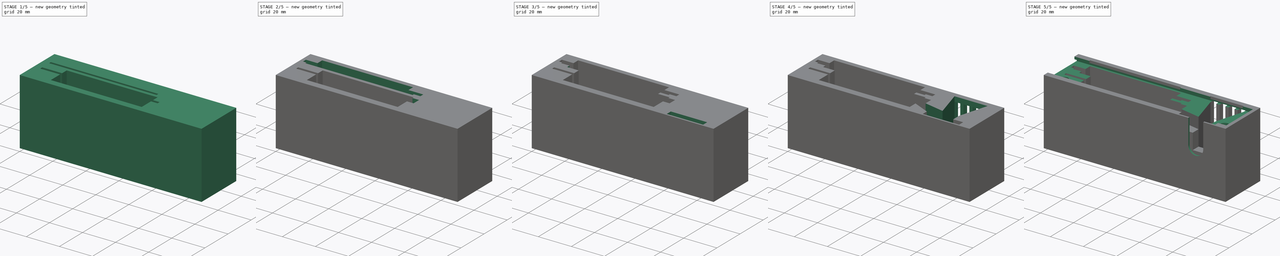
[diagram: build sequence overview — one tinted view per stage of 5, left to right]
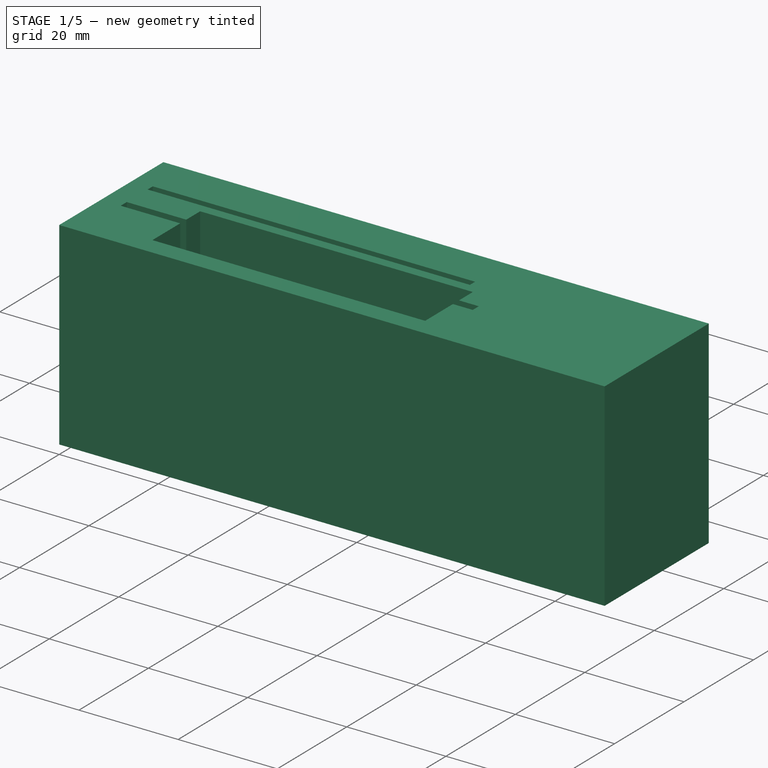
[diagram: stage 1 of 5 — iso view after this stage's code; geometry added in this stage tinted green]
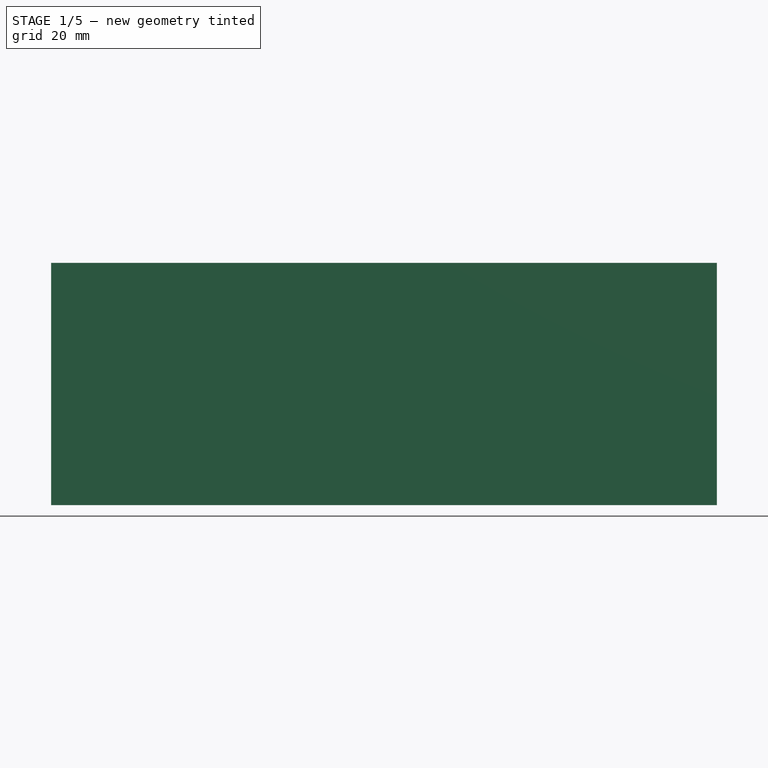
[diagram: stage 1 of 5 — front view after this stage's code; geometry added in this stage tinted green]
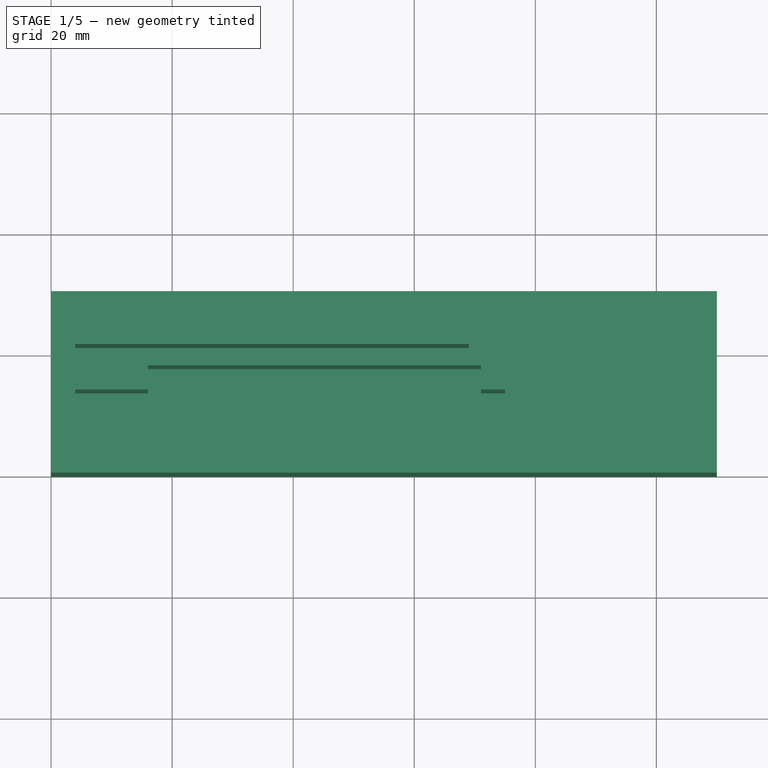
[diagram: stage 1 of 5 — top view after this stage's code; geometry added in this stage tinted green]
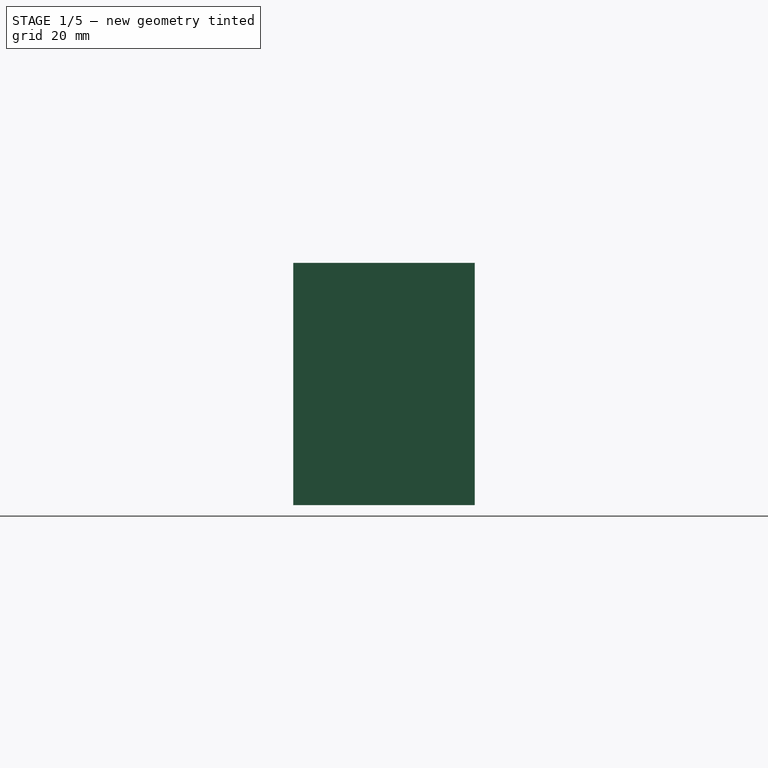
[diagram: stage 1 of 5 — right view after this stage's code; geometry added in this stage tinted green]
FCSTD DOCUMENT  (FreeCAD 0.19R24366 (Git))
Label: case
License: All rights reserved
LicenseURL: http://en.wikipedia.org/wiki/All_rights_reserved
objects: Sketcher::SketchObject×17, PartDesign::Pocket×16, PartDesign::Plane×2, PartDesign::Pad×1, PartDesign::Body×1
note: 54 computed .brp shape members not serialized (recipe doc carries the construction recipe); baked Part::Feature solids carry a one-line shape summary decoded from their .brp

FEATURE [Sketcher::SketchObject] Sketch
  FullyConstrained = true
  MapMode = 5
  Support = -> [XY_Plane]
  sketch-geometry (4):
    g0: LineSegment StartX=0 StartY=0 StartZ=0 EndX=110 EndY=0 EndZ=0
    g1: LineSegment StartX=110 StartY=0 StartZ=0 EndX=110 EndY=30 EndZ=0
    g2: LineSegment StartX=110 StartY=30 StartZ=0 EndX=0 EndY=30 EndZ=0
    g3: LineSegment StartX=0 StartY=30 StartZ=0 EndX=0 EndY=0 EndZ=0
  constraints (11):
    c: Coincident(g0,g1)
    c: Coincident(g1,g2)
    c: Coincident(g2,g3)
    c: Coincident(g3,g0)
    c: Horizontal(g0)
    c: Horizontal(g2)
    c: Vertical(g1)
    c: Vertical(g3)
    c: Coincident(g0,g-1)
    c: DistanceX(g0,g0) = 110
    c: DistanceY(g1,g1) = 30
FEATURE [PartDesign::Pad] Pad  label="BaseBody"
  Direction = (1,1,1)
  Length = 40
  Length2 = 100
  Profile = -> Sketch
  Type = 0
FEATURE [Sketcher::SketchObject] Sketch001
  FullyConstrained = true
  MapMode = 5
  Placement = pos=(0,0,40) rot=(0,0,1;0rad)
  Support = -> [Pad]
  sketch-geometry (8):
    g0: LineSegment StartX=4 StartY=12 StartZ=0 EndX=75 EndY=12 EndZ=0
    g1: LineSegment StartX=75 StartY=12 StartZ=0 EndX=75 EndY=13.75 EndZ=0
    g2: LineSegment StartX=75 StartY=13.75 StartZ=0 EndX=4 EndY=13.75 EndZ=0
    g3: LineSegment StartX=4 StartY=13.75 StartZ=0 EndX=4 EndY=12 EndZ=0
    g4: LineSegment StartX=4 StartY=19.75 StartZ=0 EndX=69 EndY=19.75 EndZ=0
    g5: LineSegment StartX=69 StartY=19.75 StartZ=0 EndX=69 EndY=21.25 EndZ=0
    g6: LineSegment StartX=69 StartY=21.25 StartZ=0 EndX=4 EndY=21.25 EndZ=0
    g7: LineSegment StartX=4 StartY=21.25 StartZ=0 EndX=4 EndY=19.75 EndZ=0
  constraints (23):
    c: Coincident(g0,g1)
    c: Coincident(g1,g2)
    c: Coincident(g2,g3)
    c: Coincident(g3,g0)
    c: Horizontal(g0)
    c: Horizontal(g2)
    c: Vertical(g1)
    c: Vertical(g3)
    c: Coincident(g4,g5)
    c: Coincident(g5,g6)
    c: Coincident(g6,g7)
    c: Coincident(g7,g4)
    c: Horizontal(g4)
    c: Horizontal(g6)
    c: Vertical(g5)
    c: DistanceX(g0,g0) = 71
    c: DistanceY(g1,g1) = 1.75
    c: DistanceX(g6,g6) = 65
    c: DistanceY(g5,g5) = 1.5
    c: Tangent(g3,g7)
    c: DistanceX(g-1,g0) = 4
    c: DistanceY(g-1,g0) = 12
    c: DistanceY(g2,g4) = 6
FEATURE [PartDesign::Plane] DatumPlane  label="IntBase"
  AttachmentOffset = pos=(0,0,-3) rot=(0,0,1;0rad)
  Length = 152.234
  MapMode = 5
  Placement = pos=(0,0,3) rot=(1,0,0;3.14159rad)
  ResizeMode = 0
  Support = -> [Pad]
  Width = 72.2337
FEATURE [PartDesign::Pocket] Pocket  label="PcbMinDim"
  BaseFeature = -> Pad
  Length = 0
  Length2 = 100
  Profile = -> Sketch001
  Type = 3
  UpToFace = -> DatumPlane [Plane]
FEATURE [Sketcher::SketchObject] Sketch002
  ExternalGeometry = -> [Pocket]
  FullyConstrained = true
  MapMode = 5
  Placement = pos=(0,0,40) rot=(0,0,1;0rad)
  Support = -> [Pocket]
  sketch-geometry (4):
    g0: LineSegment StartX=71 StartY=17.75 StartZ=0 EndX=16 EndY=17.75 EndZ=0
    g1: LineSegment StartX=16 StartY=17.75 StartZ=0 EndX=16 EndY=4 EndZ=0
    g2: LineSegment StartX=16 StartY=4 StartZ=0 EndX=71 EndY=4 EndZ=0
    g3: LineSegment StartX=71 StartY=4 StartZ=0 EndX=71 EndY=17.75 EndZ=0
  constraints (12):
    c: Coincident(g0,g1)
    c: Coincident(g1,g2)
    c: Coincident(g2,g3)
    c: Coincident(g3,g0)
    c: Horizontal(g0)
    c: Horizontal(g2)
    c: Vertical(g1)
    c: Vertical(g3)
    c: DistanceX(g2,g2) = 55
    c: DistanceY(g2,g-3) = 8
    c: DistanceY(g-4,g0) = 4
    c: DistanceX(g0,g-4) = 4
FEATURE [PartDesign::Pocket] Pocket001  label="DiscComp"
  BaseFeature = -> Pocket
  Length = 0
  Length2 = 100
  Profile = -> Sketch002
  Type = 3
  UpToFace = -> DatumPlane [Plane]
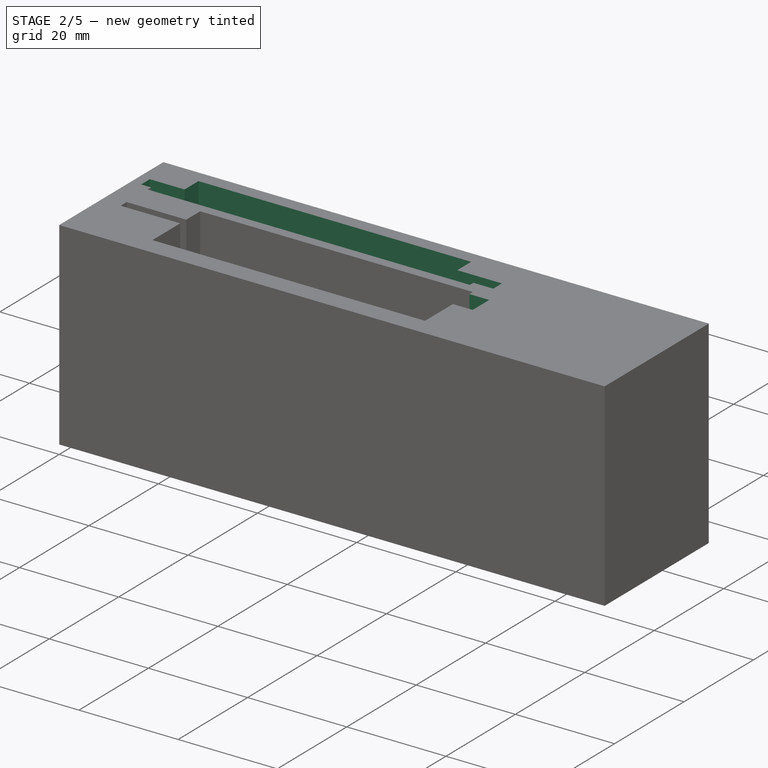
[diagram: stage 2 of 5 — iso view after this stage's code; geometry added in this stage tinted green]
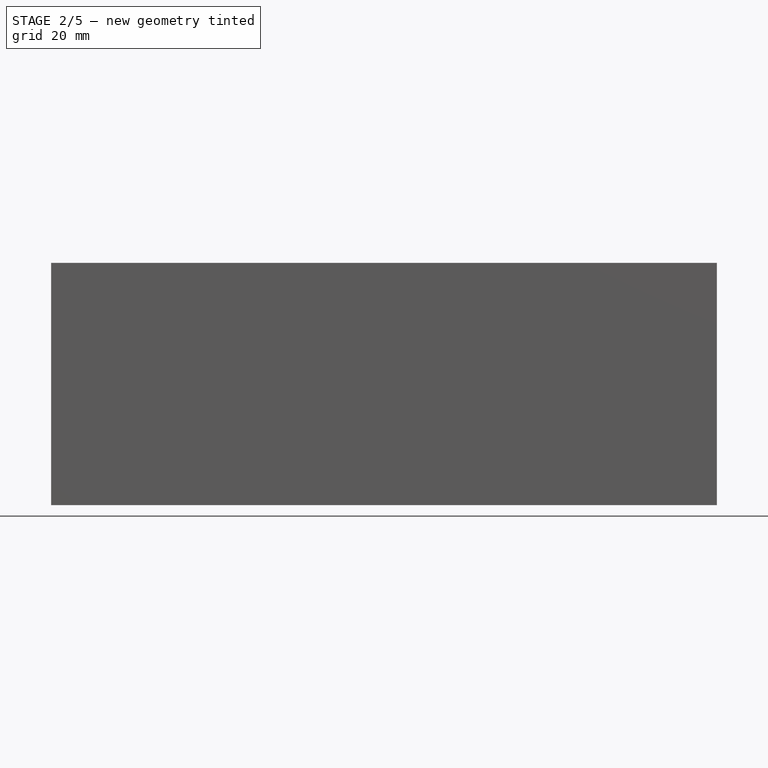
[diagram: stage 2 of 5 — front view after this stage's code; geometry added in this stage tinted green]
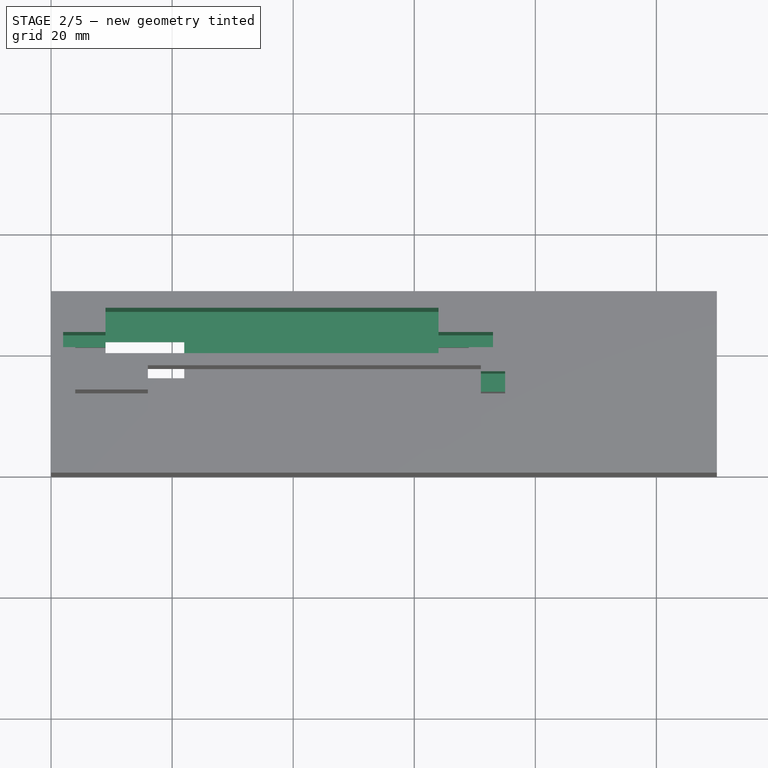
[diagram: stage 2 of 5 — top view after this stage's code; geometry added in this stage tinted green]
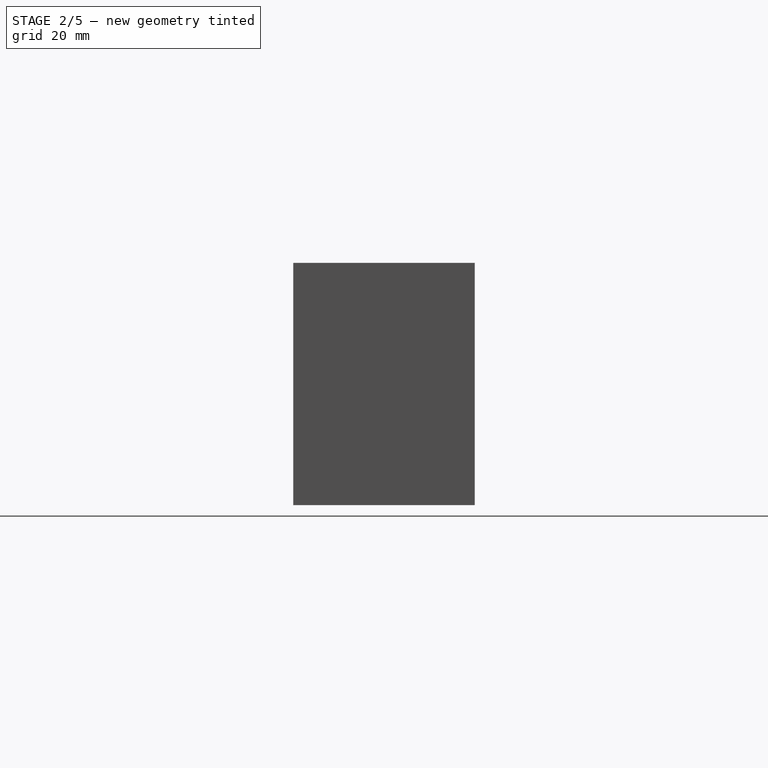
[diagram: stage 2 of 5 — right view after this stage's code; geometry added in this stage tinted green]
FEATURE [Sketcher::SketchObject] Sketch003
  ExternalGeometry = -> [Pocket001]
  FullyConstrained = true
  MapMode = 5
  Placement = pos=(0,0,40) rot=(0,0,1;0rad)
  Support = -> [Pocket001]
  sketch-geometry (4):
    g0: LineSegment StartX=70 StartY=13.75 StartZ=0 EndX=75 EndY=13.75 EndZ=0
    g1: LineSegment StartX=75 StartY=13.75 StartZ=0 EndX=75 EndY=16.75 EndZ=0
    g2: LineSegment StartX=75 StartY=16.75 StartZ=0 EndX=70 EndY=16.75 EndZ=0
    g3: LineSegment StartX=70 StartY=16.75 StartZ=0 EndX=70 EndY=13.75 EndZ=0
  constraints (11):
    c: Coincident(g0,g1)
    c: Coincident(g1,g2)
    c: Coincident(g2,g3)
    c: Coincident(g3,g0)
    c: Horizontal(g0)
    c: Horizontal(g2)
    c: Vertical(g1)
    c: Vertical(g3)
    c: Coincident(g-3,g0)
    c: DistanceY(g1,g1) = 3
    c: DistanceX(g2,g2) = 5
FEATURE [PartDesign::Pocket] Pocket002  label="Connections"
  BaseFeature = -> Pocket001
  Length = 22
  Length2 = 100
  Profile = -> Sketch003
  Type = 0
FEATURE [Sketcher::SketchObject] Sketch004
  ExternalGeometry = -> [Pocket002]
  FullyConstrained = true
  MapMode = 5
  Placement = pos=(0,0,40) rot=(0,0,1;0rad)
  Support = -> [Pocket002]
  sketch-geometry (4):
    g0: LineSegment StartX=9 StartY=20.25 StartZ=0 EndX=64 EndY=20.25 EndZ=0
    g1: LineSegment StartX=64 StartY=20.25 StartZ=0 EndX=64 EndY=27.25 EndZ=0
    g2: LineSegment StartX=64 StartY=27.25 StartZ=0 EndX=9 EndY=27.25 EndZ=0
    g3: LineSegment StartX=9 StartY=27.25 StartZ=0 EndX=9 EndY=20.25 EndZ=0
  constraints (12):
    c: Coincident(g0,g1)
    c: Coincident(g1,g2)
    c: Coincident(g2,g3)
    c: Coincident(g3,g0)
    c: Horizontal(g0)
    c: Horizontal(g2)
    c: Vertical(g1)
    c: Vertical(g3)
    c: DistanceY(g-3,g2) = 6
    c: DistanceX(g0,g-4) = 5
    c: DistanceX(g-3,g0) = 5
    c: DistanceY(g0,g-3) = 1
FEATURE [PartDesign::Pocket] Pocket003  label="RspConnectors"
  BaseFeature = -> Pocket002
  Length = 38.5
  Length2 = 100
  Profile = -> Sketch004
  Type = 0
FEATURE [Sketcher::SketchObject] Sketch005
  ExternalGeometry = -> [Pocket003]
  FullyConstrained = true
  MapMode = 5
  Placement = pos=(0,0,40) rot=(0,0,1;0rad)
  Support = -> [Pocket003]
  sketch-geometry (4):
    g0: LineSegment StartX=2 StartY=23.25 StartZ=0 EndX=73 EndY=23.25 EndZ=0
    g1: LineSegment StartX=73 StartY=23.25 StartZ=0 EndX=73 EndY=20.75 EndZ=0
    g2: LineSegment StartX=73 StartY=20.75 StartZ=0 EndX=2 EndY=20.75 EndZ=0
    g3: LineSegment StartX=2 StartY=20.75 StartZ=0 EndX=2 EndY=23.25 EndZ=0
  constraints (12):
    c: Coincident(g0,g1)
    c: Coincident(g1,g2)
    c: Coincident(g2,g3)
    c: Coincident(g3,g0)
    c: Horizontal(g0)
    c: Horizontal(g2)
    c: Vertical(g1)
    c: Vertical(g3)
    c: DistanceY(g-3,g0) = 2
    c: DistanceX(g2,g-3) = 2
    c: DistanceX(g-4,g1) = 4
    c: DistanceY(g2,g-3) = 0.5
FEATURE [PartDesign::Pocket] Pocket004  label="RspSi"
  BaseFeature = -> Pocket003
  Length = 32
  Length2 = 100
  Profile = -> Sketch005
  Type = 0
FEATURE [Sketcher::SketchObject] Sketch006
  ExternalGeometry = -> [Pocket004]
  FullyConstrained = true
  MapMode = 5
  Support = -> [XY_Plane]
  sketch-geometry (4):
    g0: LineSegment StartX=9 StartY=22.25 StartZ=0 EndX=22 EndY=22.25 EndZ=0
    g1: LineSegment StartX=22 StartY=22.25 StartZ=0 EndX=22 EndY=16.25 EndZ=0
    g2: LineSegment StartX=22 StartY=16.25 StartZ=0 EndX=9 EndY=16.25 EndZ=0
    g3: LineSegment StartX=9 StartY=16.25 StartZ=0 EndX=9 EndY=22.25 EndZ=0
  constraints (12):
    c: Coincident(g0,g1)
    c: Coincident(g1,g2)
    c: Coincident(g2,g3)
    c: Coincident(g3,g0)
    c: Horizontal(g0)
    c: Horizontal(g2)
    c: Vertical(g1)
    c: Vertical(g3)
    c: DistanceX(g-3,g0) = 5
    c: DistanceX(g-3,g0) = 18
    c: DistanceY(g2,g-3) = 5
    c: DistanceY(g-3,g0) = 1
FEATURE [PartDesign::Pocket] Pocket005  label="Pwr"
  BaseFeature = -> Pocket004
  Length = 5
  Length2 = 100
  Profile = -> Sketch006
  Reversed = true
  Type = 0
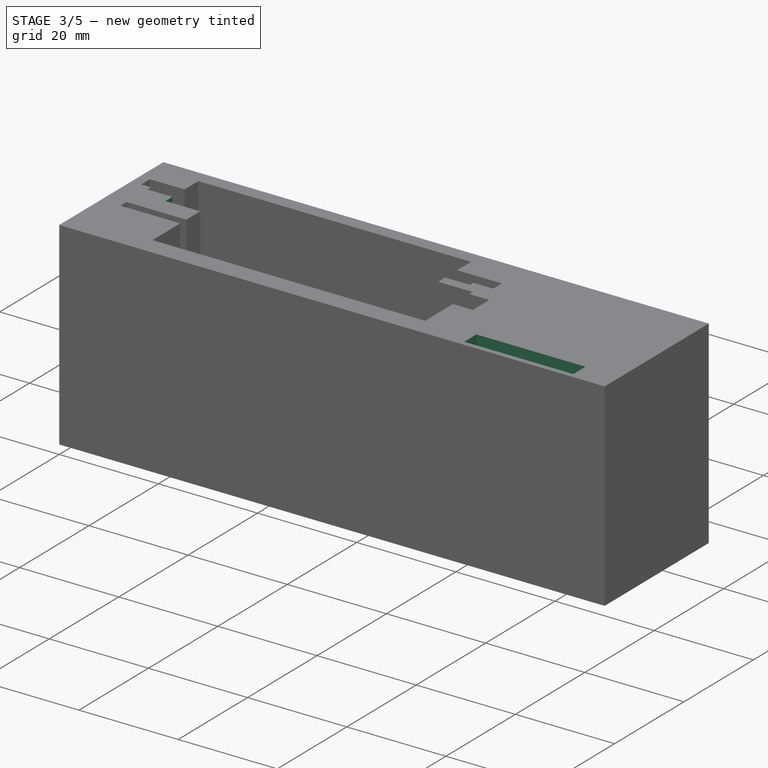
[diagram: stage 3 of 5 — iso view after this stage's code; geometry added in this stage tinted green]
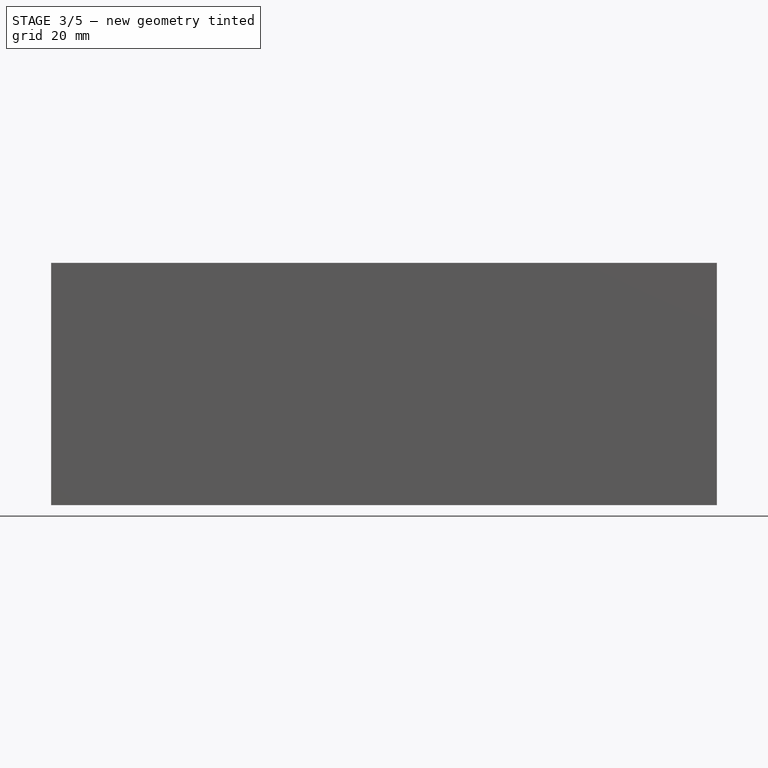
[diagram: stage 3 of 5 — front view after this stage's code; geometry added in this stage tinted green]
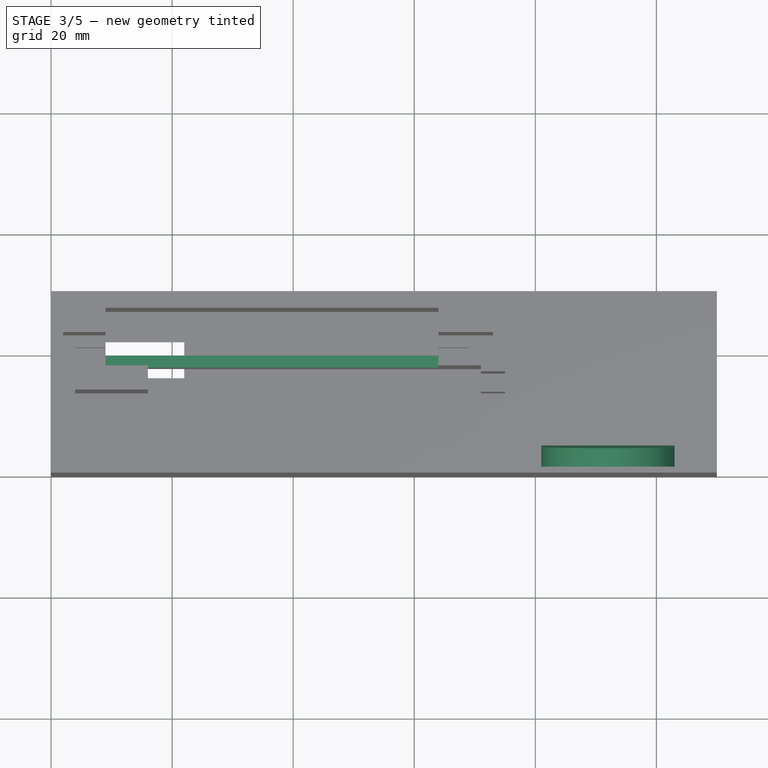
[diagram: stage 3 of 5 — top view after this stage's code; geometry added in this stage tinted green]
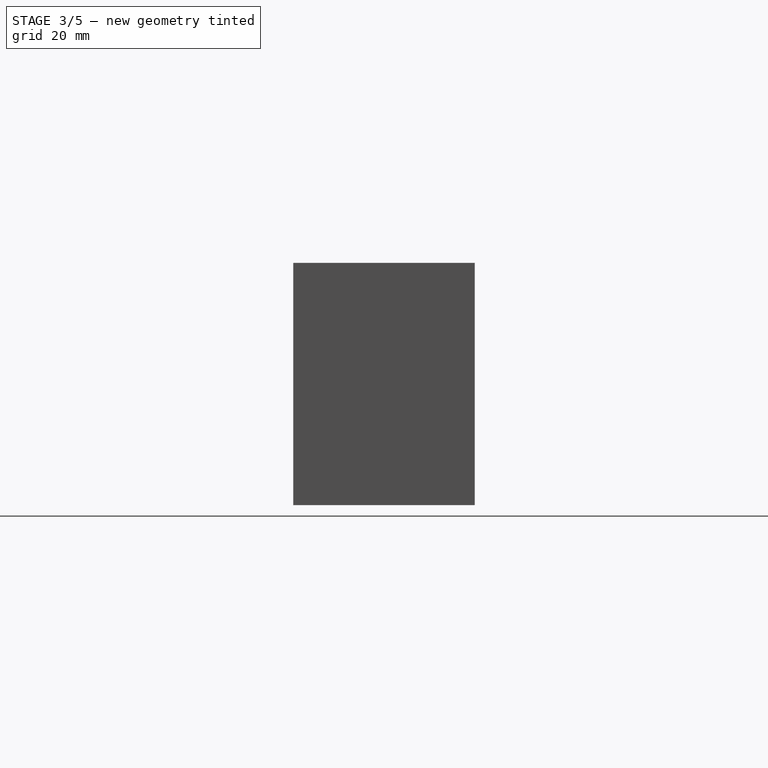
[diagram: stage 3 of 5 — right view after this stage's code; geometry added in this stage tinted green]
FEATURE [Sketcher::SketchObject] Sketch007
  ExternalGeometry = -> [Pocket005]
  FullyConstrained = true
  MapMode = 5
  Placement = pos=(0,0,40) rot=(0,0,1;0rad)
  Support = -> [Pocket005]
  sketch-geometry (4):
    g0: LineSegment StartX=9 StartY=19.75 StartZ=0 EndX=64 EndY=19.75 EndZ=0
    g1: LineSegment StartX=64 StartY=19.75 StartZ=0 EndX=64 EndY=17.75 EndZ=0
    g2: LineSegment StartX=64 StartY=17.75 StartZ=0 EndX=9 EndY=17.75 EndZ=0
    g3: LineSegment StartX=9 StartY=17.75 StartZ=0 EndX=9 EndY=19.75 EndZ=0
  constraints (12):
    c: Coincident(g0,g1)
    c: Coincident(g1,g2)
    c: Coincident(g2,g3)
    c: Coincident(g3,g0)
    c: Horizontal(g0)
    c: Horizontal(g2)
    c: Vertical(g1)
    c: Vertical(g3)
    c: PointOnObject(g-5,g2)
    c: PointOnObject(g-4,g0)
    c: DistanceX(g-3,g0) = 5
    c: DistanceX(g0,g-4) = 5
FEATURE [PartDesign::Pocket] Pocket006  label="Inter"
  BaseFeature = -> Pocket005
  Length = 22
  Length2 = 100
  Profile = -> Sketch007
  Type = 0
FEATURE [PartDesign::Plane] DatumPlane001  label="BaseLamp"
  AttachmentOffset = pos=(0,0,-1) rot=(0,0,1;0rad)
  Length = 153.735
  MapMode = 5
  Placement = pos=(0,1,-2e-16) rot=(1,0,0;1.5708rad)
  ResizeMode = 0
  Support = -> [Pocket006]
  Width = 83.735
FEATURE [Sketcher::SketchObject] Sketch009
  ExternalGeometry = -> [Pocket006]
  FullyConstrained = true
  MapMode = 5
  Placement = pos=(0,1,-2e-16) rot=(1,0,0;1.5708rad)
  Support = -> [DatumPlane001]
  sketch-geometry (1):
    g0: Circle CenterX=92 CenterY=25 CenterZ=0 NormalX=0 NormalY=0 NormalZ=1 AngleXU=0 Radius=11
  constraints (3):
    c: Diameter(g0) = 22
    c: DistanceX(g0,g-3) = 18
    c: DistanceY(g0,g-3) = 15
FEATURE [PartDesign::Pocket] Pocket007  label="LampPlate"
  BaseFeature = -> Pocket006
  Length = 3.5
  Length2 = 100
  Profile = -> Sketch009
  Type = 0
FEATURE [Sketcher::SketchObject] Sketch010
  ExternalGeometry = -> [Pocket007]
  FullyConstrained = true
  MapMode = 5
  Placement = pos=(0,0,40) rot=(0,0,1;0rad)
  Support = -> [Pocket007]
  sketch-geometry (4):
    g0: LineSegment StartX=103 StartY=4.5 StartZ=0 EndX=81 EndY=4.5 EndZ=0
    g1: LineSegment StartX=81 StartY=4.5 StartZ=0 EndX=81 EndY=1 EndZ=0
    g2: LineSegment StartX=81 StartY=1 StartZ=0 EndX=103 EndY=1 EndZ=0
    g3: LineSegment StartX=103 StartY=1 StartZ=0 EndX=103 EndY=4.5 EndZ=0
  constraints (10):
    c: Coincident(g0,g1)
    c: Coincident(g1,g2)
    c: Coincident(g2,g3)
    c: Coincident(g3,g0)
    c: Horizontal(g0)
    c: Horizontal(g2)
    c: Vertical(g1)
    c: Coincident(g0,g-3)
    c: DistanceX(g0,g0) = 22
    c: Coincident(g2,g-4)
FEATURE [PartDesign::Pocket] Pocket008  label="LampPlateInsert"
  BaseFeature = -> Pocket007
  Length = 15
  Length2 = 100
  Profile = -> Sketch010
  Type = 0
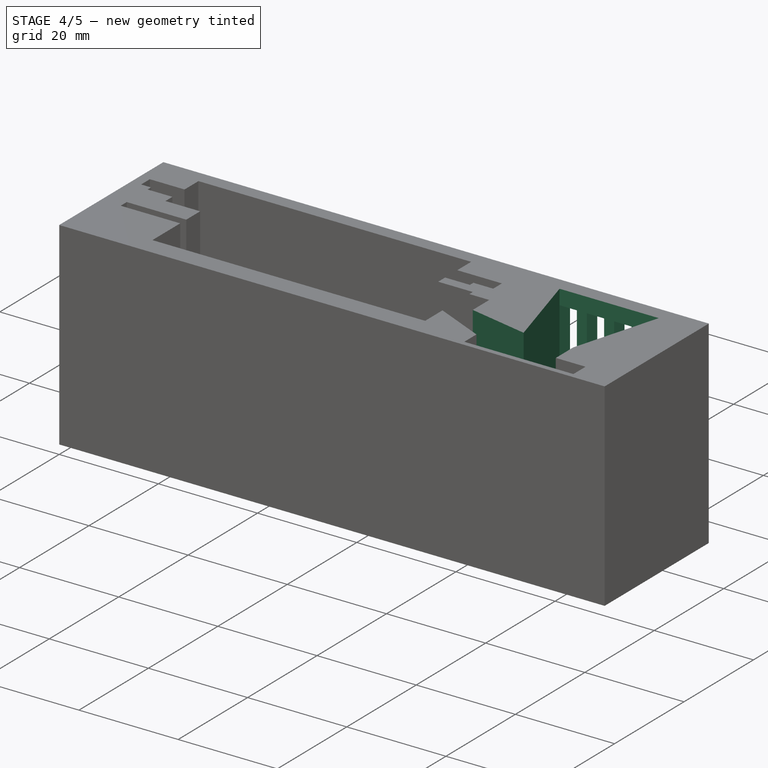
[diagram: stage 4 of 5 — iso view after this stage's code; geometry added in this stage tinted green]
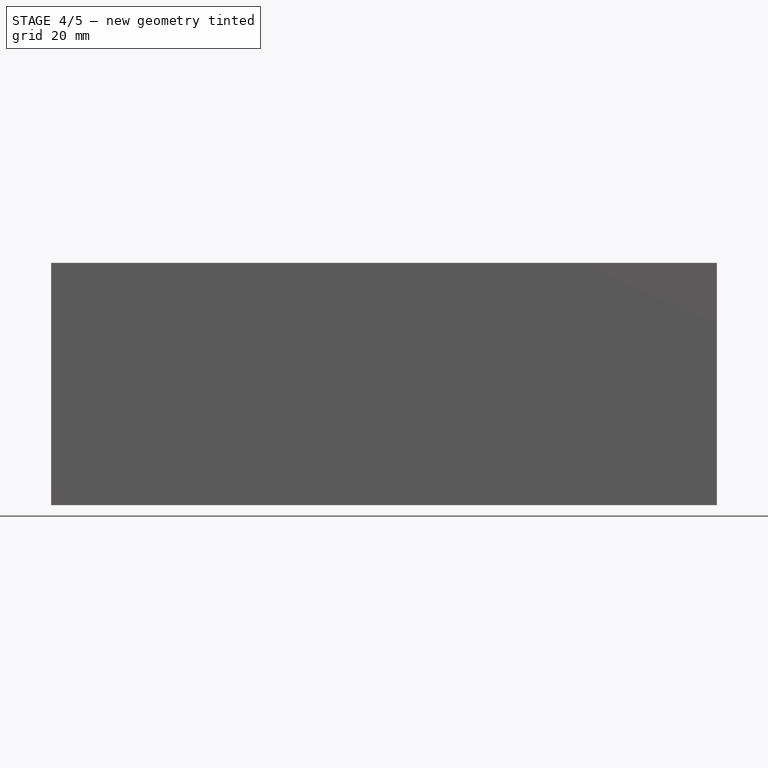
[diagram: stage 4 of 5 — front view after this stage's code; geometry added in this stage tinted green]
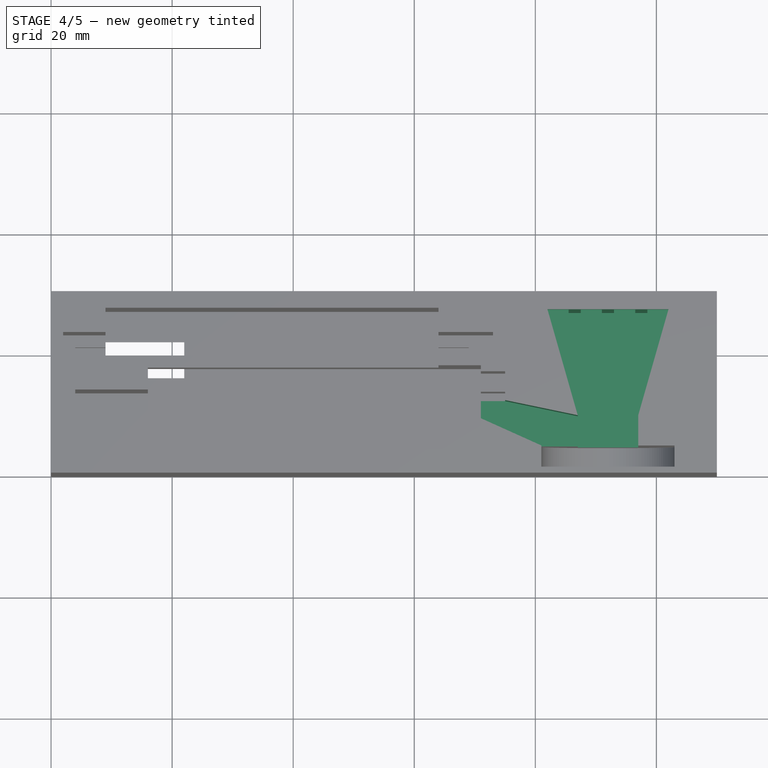
[diagram: stage 4 of 5 — top view after this stage's code; geometry added in this stage tinted green]
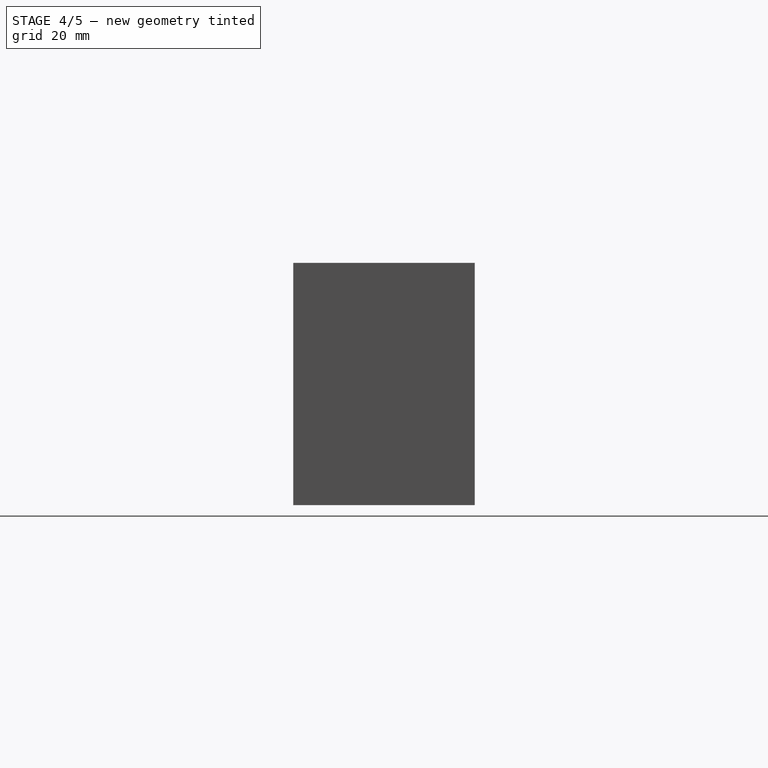
[diagram: stage 4 of 5 — right view after this stage's code; geometry added in this stage tinted green]
FEATURE [Sketcher::SketchObject] Sketch011
  ExternalGeometry = -> [Pocket008]
  FullyConstrained = true
  MapMode = 5
  Placement = pos=(0,0,40) rot=(0,0,1;0rad)
  Support = -> [Pocket008]
  sketch-geometry (5):
    g0: GeomPoint X=92 Y=4.5 Z=0
    g1: LineSegment StartX=87 StartY=4.5 StartZ=0 EndX=97 EndY=4.5 EndZ=0
    g2: LineSegment StartX=97 StartY=4.5 StartZ=0 EndX=97 EndY=9.5 EndZ=0
    g3: LineSegment StartX=97 StartY=9.5 StartZ=0 EndX=87 EndY=9.5 EndZ=0
    g4: LineSegment StartX=87 StartY=9.5 StartZ=0 EndX=87 EndY=4.5 EndZ=0
  constraints (13):
    c: Symmetric(g-4,g-3,g0)
    c: Coincident(g1,g2)
    c: Coincident(g2,g3)
    c: Coincident(g3,g4)
    c: Coincident(g4,g1)
    c: Horizontal(g1)
    c: Horizontal(g3)
    c: Vertical(g2)
    c: Vertical(g4)
    c: DistanceX(g1,g0) = 5
    c: DistanceX(g0,g1) = 5
    c: PointOnObject(g0,g1)
    c: DistanceY(g2,g2) = 5
FEATURE [PartDesign::Pocket] Pocket009  label="CoolerFixation"
  BaseFeature = -> Pocket008
  Length = 19.5
  Length2 = 100
  Profile = -> Sketch011
  Type = 0
FEATURE [Sketcher::SketchObject] Sketch012
  ExternalGeometry = -> [Pocket009]
  FullyConstrained = true
  MapMode = 5
  Placement = pos=(0,0,40) rot=(0,0,1;0rad)
  Support = -> [Pocket009]
  sketch-geometry (6):
    g0: LineSegment StartX=87 StartY=9.5 StartZ=0 EndX=75 EndY=12 EndZ=0
    g1: LineSegment StartX=75 StartY=12 StartZ=0 EndX=71 EndY=12 EndZ=0
    g2: LineSegment StartX=71 StartY=12 StartZ=0 EndX=71 EndY=9 EndZ=0
    g3: LineSegment StartX=71 StartY=9 StartZ=0 EndX=81 EndY=4.5 EndZ=0
    g4: LineSegment StartX=81 StartY=4.5 StartZ=0 EndX=87 EndY=4.5 EndZ=0
    g5: LineSegment StartX=87 StartY=4.5 StartZ=0 EndX=87 EndY=9.5 EndZ=0
  constraints (13):
    c: Coincident(g0,g-7)
    c: Coincident(g0,g-6)
    c: Coincident(g0,g1)
    c: Coincident(g1,g-3)
    c: Coincident(g1,g2)
    c: Vertical(g2)
    c: Coincident(g2,g3)
    c: Coincident(g3,g-5)
    c: Coincident(g3,g4)
    c: Coincident(g4,g-4)
    c: Coincident(g4,g5)
    c: Coincident(g5,g0)
    c: DistanceY(g2,g2) = 3
FEATURE [PartDesign::Pocket] Pocket010  label="Cables"
  BaseFeature = -> Pocket009
  Length = 10
  Length2 = 100
  Profile = -> Sketch012
  Type = 0
FEATURE [Sketcher::SketchObject] Sketch013
  ExternalGeometry = -> [Pocket010]
  FullyConstrained = true
  MapMode = 5
  Placement = pos=(0,0,40) rot=(0,0,1;0rad)
  Support = -> [Pocket010]
  sketch-geometry (4):
    g0: LineSegment StartX=87 StartY=9.5 StartZ=0 EndX=82 EndY=27 EndZ=0
    g1: LineSegment StartX=82 StartY=27 StartZ=0 EndX=102 EndY=27 EndZ=0
    g2: LineSegment StartX=102 StartY=27 StartZ=0 EndX=97 EndY=9.5 EndZ=0
    g3: LineSegment StartX=97 StartY=9.5 StartZ=0 EndX=87 EndY=9.5 EndZ=0
  constraints (10):
    c: Coincident(g0,g-3)
    c: Coincident(g0,g1)
    c: Horizontal(g1)
    c: Coincident(g1,g2)
    c: Coincident(g2,g-4)
    c: Coincident(g2,g3)
    c: Coincident(g3,g0)
    c: DistanceY(g1,g-5) = 3
    c: DistanceX(g0,g0) = 5
    c: DistanceX(g2,g1) = 5
FEATURE [PartDesign::Pocket] Pocket011  label="CoolingSpace"
  BaseFeature = -> Pocket010
  Length = 35
  Length2 = 100
  Profile = -> Sketch013
  Type = 0
FEATURE [Sketcher::SketchObject] Sketch014
  ExternalGeometry = -> [Pocket011]
  FullyConstrained = true
  MapMode = 5
  Placement = pos=(0,27,0) rot=(1,0,0;1.5708rad)
  Support = -> [Pocket011]
  sketch-geometry (16):
    g0: LineSegment StartX=82 StartY=5 StartZ=0 EndX=85.5 EndY=5 EndZ=0
    g1: LineSegment StartX=85.5 StartY=5 StartZ=0 EndX=85.5 EndY=37 EndZ=0
    g2: LineSegment StartX=85.5 StartY=37 StartZ=0 EndX=82 EndY=37 EndZ=0
    g3: LineSegment StartX=82 StartY=37 StartZ=0 EndX=82 EndY=5 EndZ=0
    g4: LineSegment StartX=87.5 StartY=37 StartZ=0 EndX=91 EndY=37 EndZ=0
    g5: LineSegment StartX=91 StartY=37 StartZ=0 EndX=91 EndY=5 EndZ=0
    g6: LineSegment StartX=91 StartY=5 StartZ=0 EndX=87.5 EndY=5 EndZ=0
    g7: LineSegment StartX=87.5 StartY=5 StartZ=0 EndX=87.5 EndY=37 EndZ=0
    g8: LineSegment StartX=93 StartY=37 StartZ=0 EndX=96.5 EndY=37 EndZ=0
    g9: LineSegment StartX=96.5 StartY=37 StartZ=0 EndX=96.5 EndY=5 EndZ=0
    g10: LineSegment StartX=96.5 StartY=5 StartZ=0 EndX=93 EndY=5 EndZ=0
    g11: LineSegment StartX=93 StartY=5 StartZ=0 EndX=93 EndY=37 EndZ=0
    g12: LineSegment StartX=98.5 StartY=37 StartZ=0 EndX=102 EndY=37 EndZ=0
    g13: LineSegment StartX=102 StartY=37 StartZ=0 EndX=102 EndY=5 EndZ=0
    g14: LineSegment StartX=102 StartY=5 StartZ=0 EndX=98.5 EndY=5 EndZ=0
    g15: LineSegment StartX=98.5 StartY=5 StartZ=0 EndX=98.5 EndY=37 EndZ=0
  constraints (46):
    c: Coincident(g0,g1)
    c: Coincident(g1,g2)
    c: Coincident(g2,g3)
    c: Coincident(g3,g0)
    c: Horizontal(g0)
    c: Horizontal(g2)
    c: Vertical(g1)
    c: Vertical(g3)
    c: Coincident(g0,g-3)
    c: Coincident(g4,g5)
    c: Coincident(g5,g6)
    c: Coincident(g6,g7)
    c: Coincident(g7,g4)
    c: Horizontal(g4)
    c: Horizontal(g6)
    c: Vertical(g5)
    c: Vertical(g7)
    c: Coincident(g8,g9)
    c: Coincident(g9,g10)
    c: Coincident(g10,g11)
    c: Coincident(g11,g8)
    c: Horizontal(g8)
    c: Horizontal(g10)
    c: Vertical(g9)
    c: Vertical(g11)
    c: Coincident(g12,g13)
    c: Coincident(g13,g14)
    c: Coincident(g14,g15)
    c: Coincident(g15,g12)
    c: Horizontal(g12)
    c: Horizontal(g14)
    c: Vertical(g13)
    c: Vertical(g15)
    c: Coincident(g13,g-4)
    c: DistanceX(g12,g12) = 3.5
    c: DistanceX(g2,g2) = 3.5
    c: DistanceX(g4,g4) = 3.5
    c: DistanceX(g8,g8) = 3.5
    c: PointOnObject(g1,g4)
    c: PointOnObject(g4,g8)
    c: PointOnObject(g1,g12)
    c: PointOnObject(g0,g6)
    c: PointOnObject(g5,g10)
    c: DistanceX(g9,g14) = 2
    c: DistanceX(g0,g6) = 2
    c: DistanceY(g2,g-3) = 3
FEATURE [PartDesign::Pocket] Pocket012  label="Vents"
  BaseFeature = -> Pocket011
  Length = 0
  Length2 = 100
  Profile = -> Sketch014
  Type = 3
  UpToFace = -> Pocket011 [Face6]
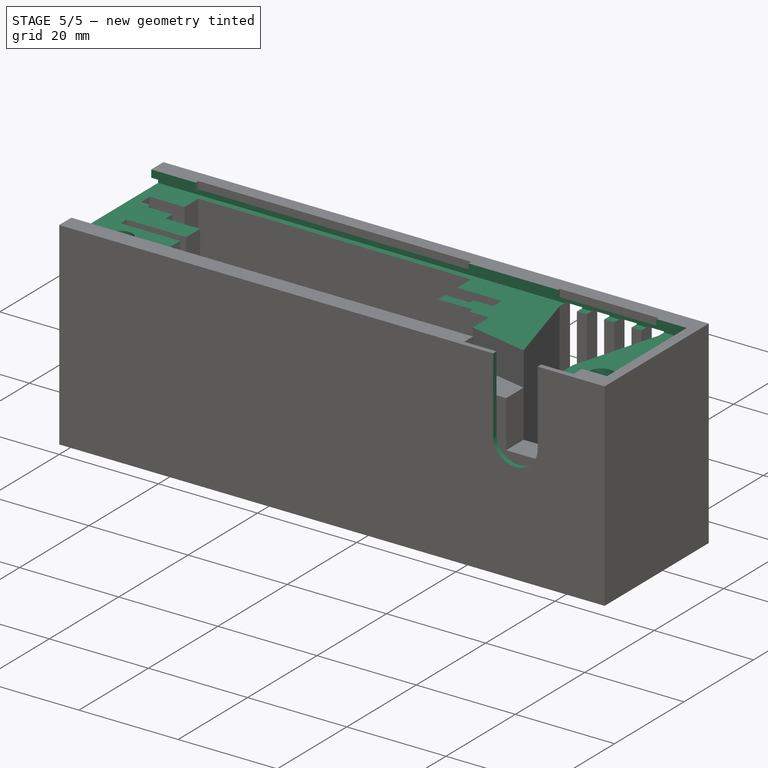
[diagram: stage 5 of 5 — iso view after this stage's code; geometry added in this stage tinted green]
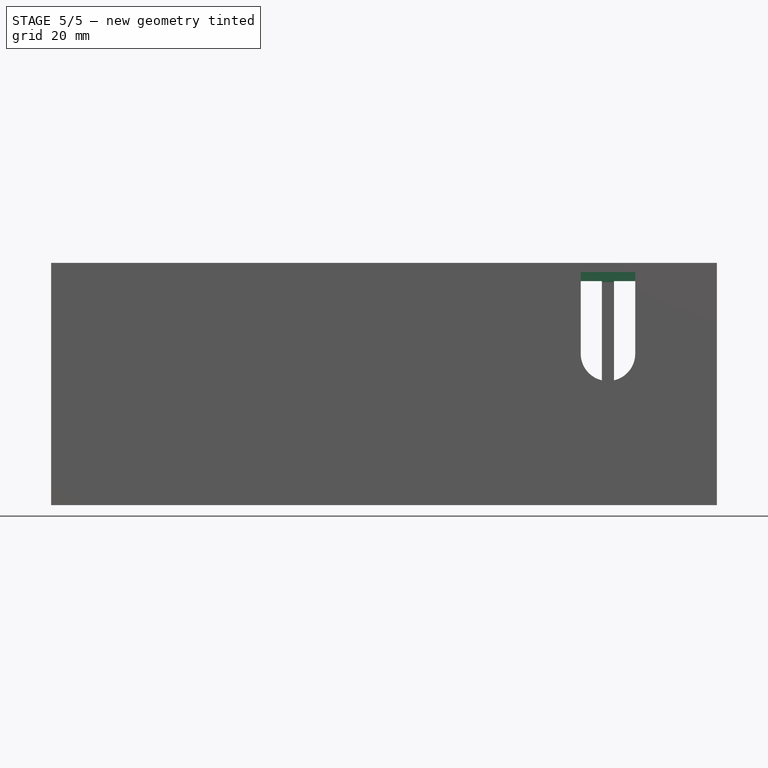
[diagram: stage 5 of 5 — front view after this stage's code; geometry added in this stage tinted green]
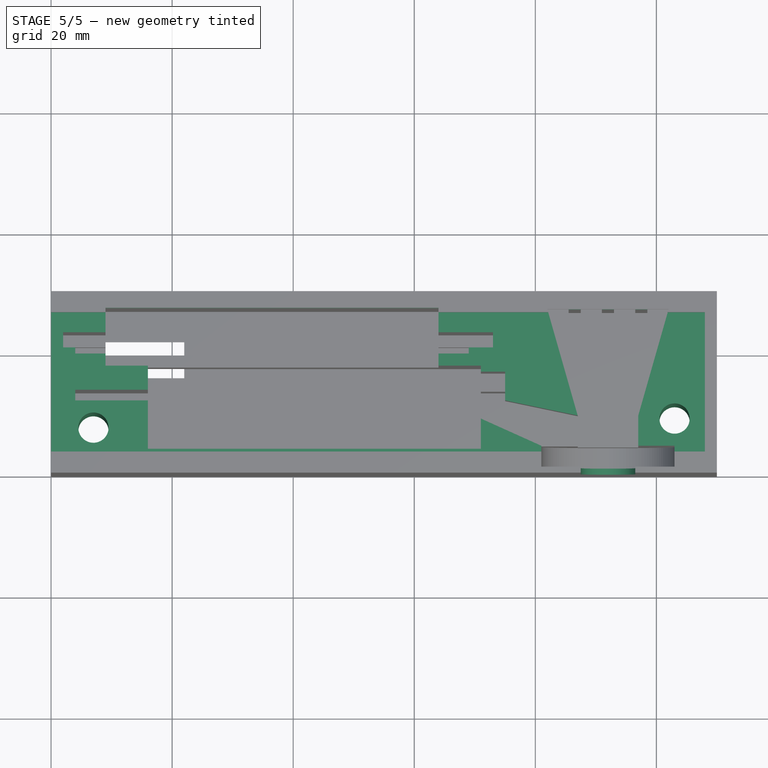
[diagram: stage 5 of 5 — top view after this stage's code; geometry added in this stage tinted green]
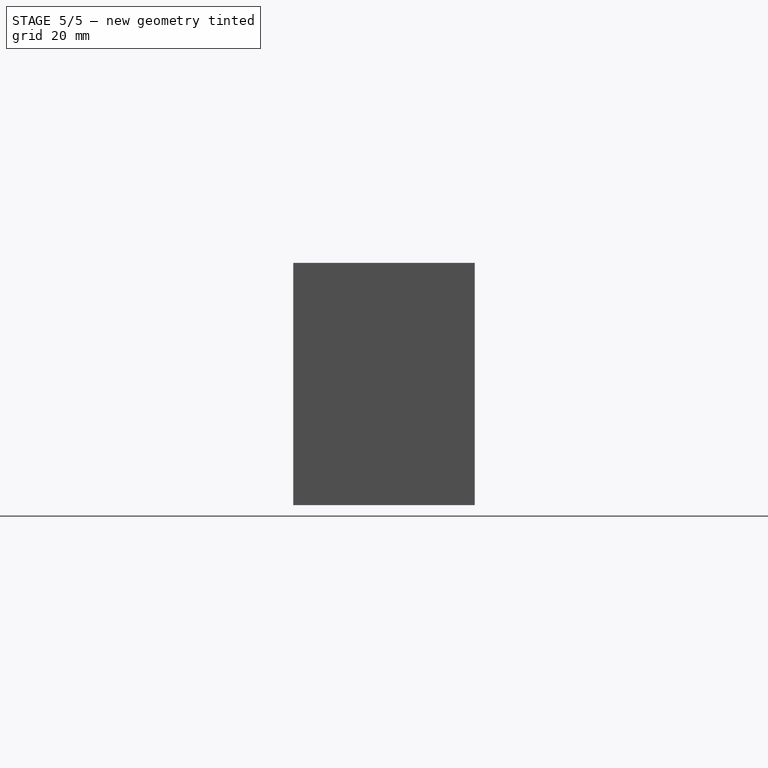
[diagram: stage 5 of 5 — right view after this stage's code; geometry added in this stage tinted green]
FEATURE [Sketcher::SketchObject] Sketch015
  ExternalGeometry = -> [Pocket012]
  FullyConstrained = true
  MapMode = 5
  Placement = pos=(0,0,0) rot=(1,0,0;1.5708rad)
  Support = -> [Pocket012]
  sketch-geometry (4):
    g0: ArcOfCircle CenterX=92 CenterY=25 CenterZ=0 NormalX=0 NormalY=0 NormalZ=1 AngleXU=0 Radius=4.5 StartAngle=3.14159 EndAngle=6.28319
    g1: LineSegment StartX=87.5 StartY=25 StartZ=0 EndX=87.5 EndY=40 EndZ=0
    g2: LineSegment StartX=87.5 StartY=40 StartZ=0 EndX=96.5 EndY=40 EndZ=0
    g3: LineSegment StartX=96.5 StartY=40 StartZ=0 EndX=96.5 EndY=25 EndZ=0
  constraints (12):
    c: Diameter(g0) = 9
    c: PointOnObject(g0,g-3)
    c: PointOnObject(g0,g-3)
    c: PointOnObject(g0,g-3)
    c: Tangent(g0,g1) = 1.5708
    c: Coincident(g1,g2)
    c: PointOnObject(g2,g-4)
    c: Horizontal(g2)
    c: Coincident(g2,g3)
    c: Coincident(g3,g0)
    c: Vertical(g3)
    c: DistanceX(g0,g-4) = 18
FEATURE [PartDesign::Pocket] Pocket013  label="Lamp"
  BaseFeature = -> Pocket012
  Length = 0
  Length2 = 100
  Profile = -> Sketch015
  Type = 3
  UpToFace = -> Pocket012 [Face46]
FEATURE [Sketcher::SketchObject] Sketch016
  ExternalGeometry = -> [Pocket013]
  FullyConstrained = true
  MapMode = 5
  Placement = pos=(0,0,0) rot=(0.57735,-0.57735,-0.57735;2.0944rad)
  Support = -> [Pocket013]
  sketch-geometry (8):
    g0: LineSegment StartX=-1.5 StartY=38.5 StartZ=0 EndX=-1.5 EndY=36.8 EndZ=0
    g1: LineSegment StartX=-1.5 StartY=36.8 StartZ=0 EndX=-28.5 EndY=36.8 EndZ=0
    g2: LineSegment StartX=-28.5 StartY=36.8 StartZ=0 EndX=-28.5 EndY=38.5 EndZ=0
    g3: LineSegment StartX=-28.5 StartY=38.5 StartZ=0 EndX=-26.5 EndY=38.5 EndZ=0
    g4: LineSegment StartX=-26.5 StartY=38.5 StartZ=0 EndX=-26.5 EndY=40.5 EndZ=0
    g5: LineSegment StartX=-26.5 StartY=40.5 StartZ=0 EndX=-3.5 EndY=40.5 EndZ=0
    g6: LineSegment StartX=-3.5 StartY=40.5 StartZ=0 EndX=-3.5 EndY=38.5 EndZ=0
    g7: LineSegment StartX=-3.5 StartY=38.5 StartZ=0 EndX=-1.5 EndY=38.5 EndZ=0
  constraints (24):
    c: Coincident(g0,g1)
    c: Coincident(g1,g2)
    c: Horizontal(g1)
    c: Vertical(g0)
    c: Vertical(g2)
    c: DistanceX(g0,g-4) = 1.5
    c: DistanceX(g-3,g2) = 1.5
    c: DistanceY(g2,g-3) = 1.5
    c: DistanceY(g0,g0) = 1.7
    c: Coincident(g2,g3)
    c: Horizontal(g3)
    c: Coincident(g3,g4)
    c: Vertical(g4)
    c: Coincident(g4,g5)
    c: Horizontal(g5)
    c: Coincident(g5,g6)
    c: Vertical(g6)
    c: Coincident(g6,g7)
    c: Coincident(g7,g0)
    c: Horizontal(g7)
    c: DistanceY(g0,g-4) = 1.5
    c: DistanceY(g6,g6) = 2
    c: DistanceX(g7,g7) = 2
    c: DistanceX(g3,g3) = 2
FEATURE [PartDesign::Pocket] Pocket014
  BaseFeature = -> Pocket013
  Length = 108
  Length2 = 100
  Profile = -> Sketch016
  Type = 0
FEATURE [Sketcher::SketchObject] Sketch017
  ExternalGeometry = -> [Pocket014]
  FullyConstrained = true
  MapMode = 5
  Placement = pos=(0,0,0) rot=(1,0,0;3.14159rad)
  Support = -> [Pocket014]
  sketch-geometry (2):
    g0: Circle CenterX=7 CenterY=-7.5 CenterZ=0 NormalX=0 NormalY=0 NormalZ=1 AngleXU=0 Radius=2.5
    g1: Circle CenterX=103 CenterY=-9 CenterZ=0 NormalX=0 NormalY=0 NormalZ=1 AngleXU=0 Radius=2.5
  constraints (6):
    c: Diameter(g1) = 5
    c: Diameter(g0) = 5
    c: DistanceY(g1,g-3) = 9
    c: DistanceY(g0,g-1) = 7.5
    c: DistanceX(g1,g-3) = 7
    c: DistanceX(g-1,g0) = 7
FEATURE [PartDesign::Pocket] Pocket015
  BaseFeature = -> Pocket014
  Length = 5
  Length2 = 100
  Profile = -> Sketch017
  Type = 1
FEATURE [PartDesign::Body] Body
  Group = -> [Sketch,Pad,Sketch001,DatumPlane,Pocket,Sketch002,Pocket001,Sketch003,Pocket002,Sketch004,Pocket003,Sketch005,Pocket004,Sketch006,Pocket005,Sketch007,Pocket006,DatumPlane001,Sketch009,Pocket007,Sketch010,Pocket008,Sketch011,Pocket009,Sketch012,Pocket010,Sketch013,Pocket011,Sketch014,Pocket012,Sketch015,Pocket013,Sketch016,Pocket014,Sketch017,Pocket015]
  Origin = -> Origin
  Tip = -> Pocket015
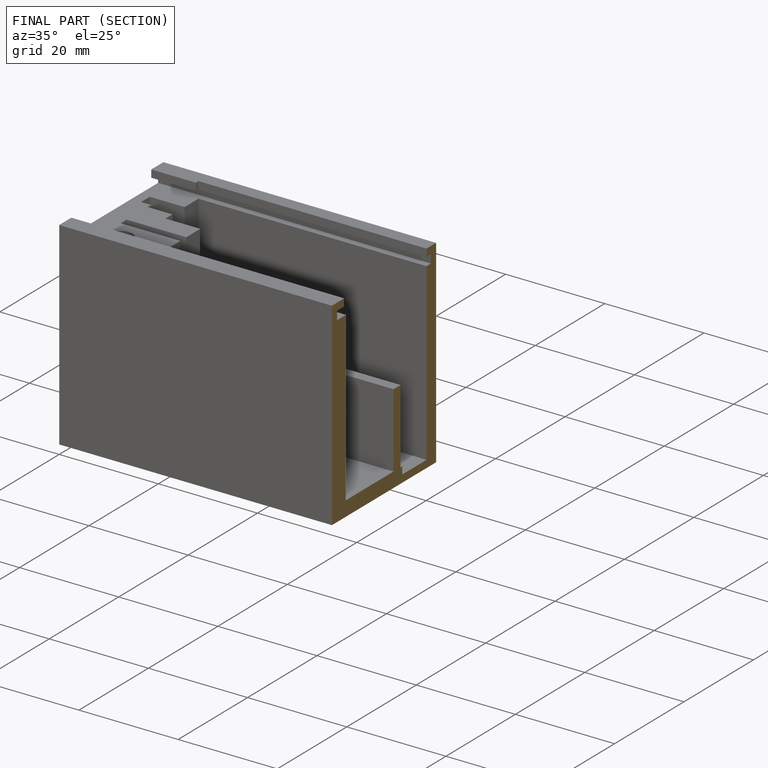
[diagram: finished part — half-section view (interior)]
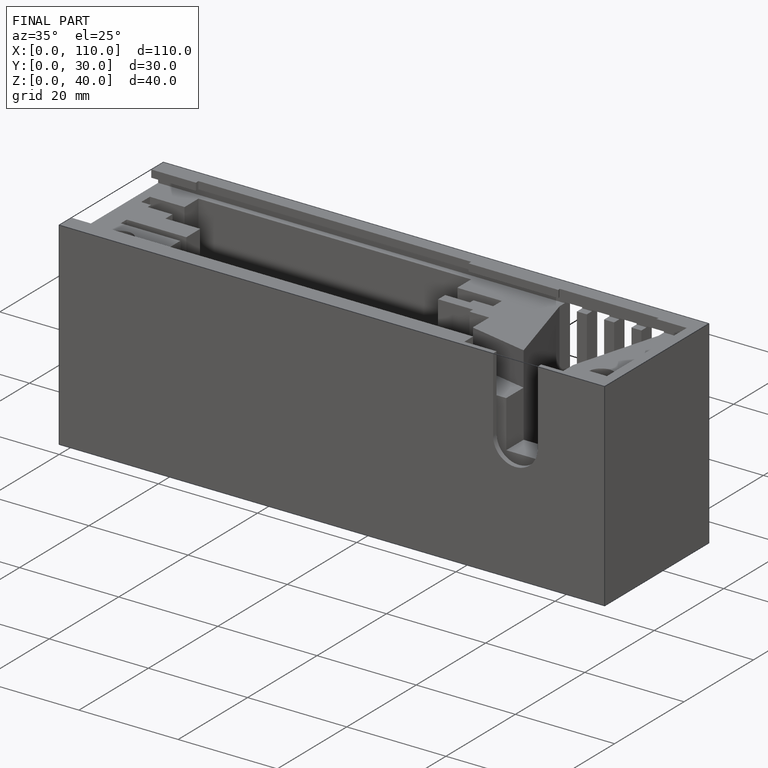
[diagram: finished part — iso view with bounding-box wireframe]
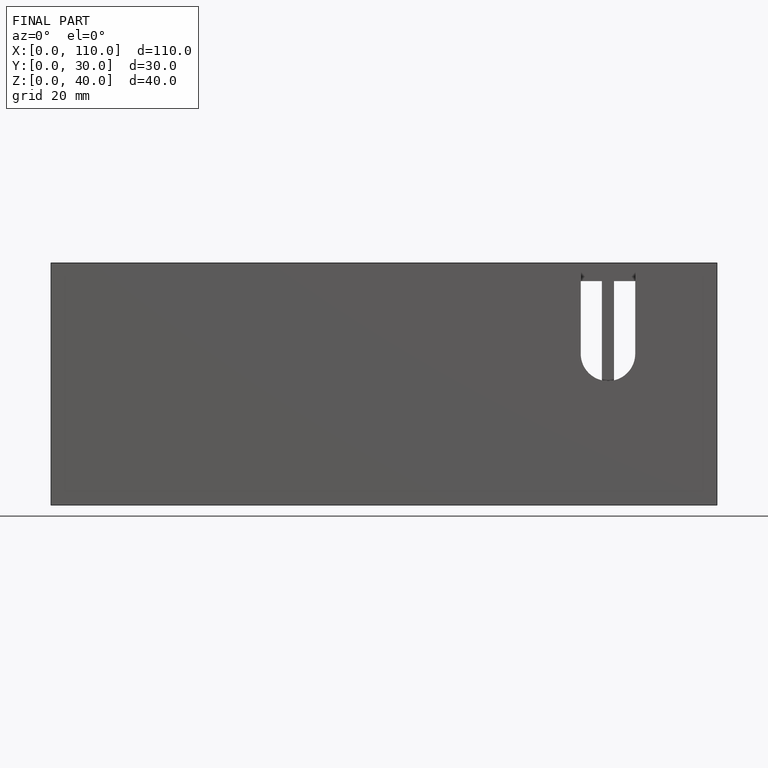
[diagram: finished part — front view with bounding-box wireframe]
